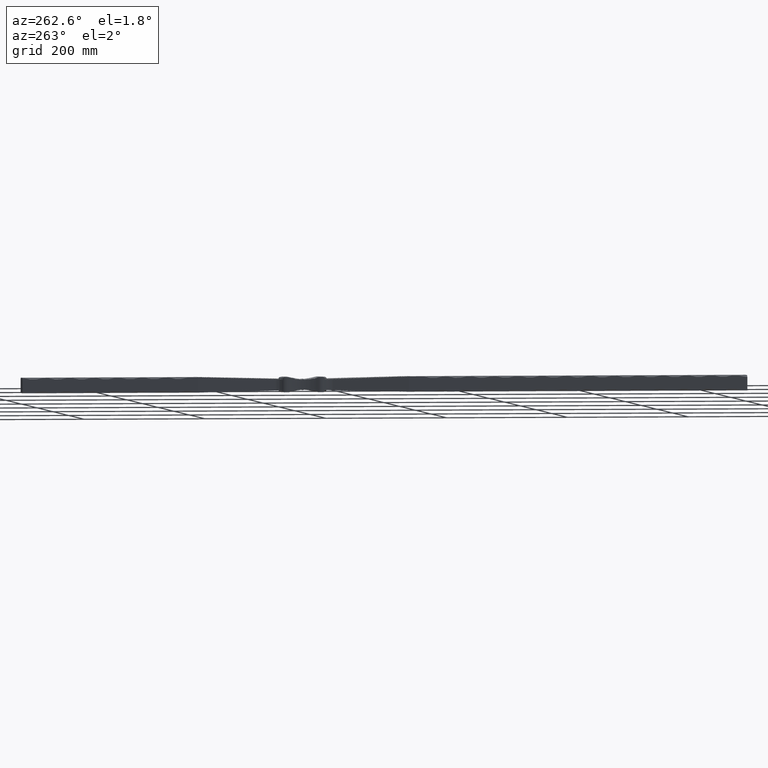
[diagram: clean part render]
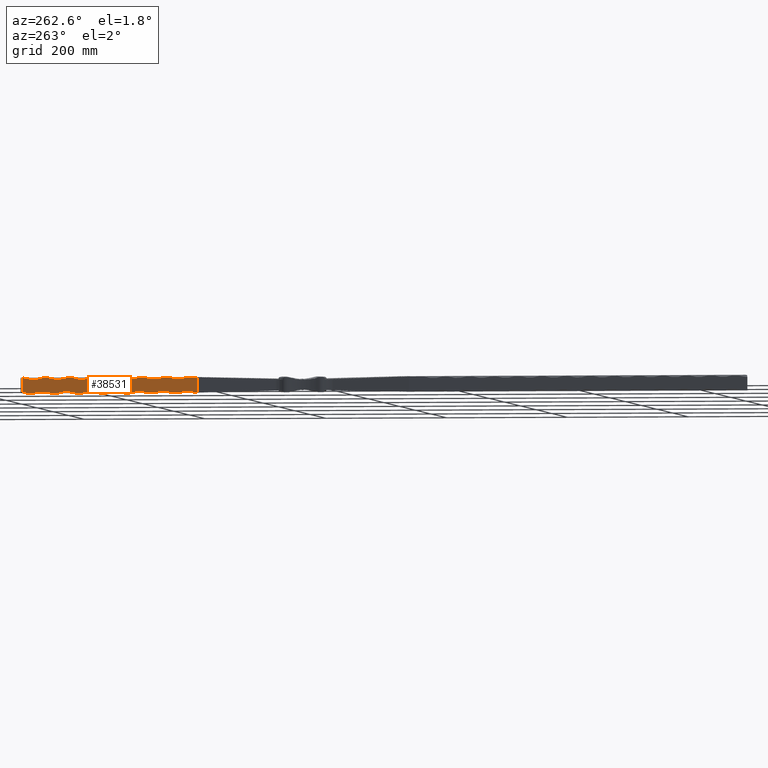
[diagram: same view with one face highlighted and labeled with its STEP entity id]
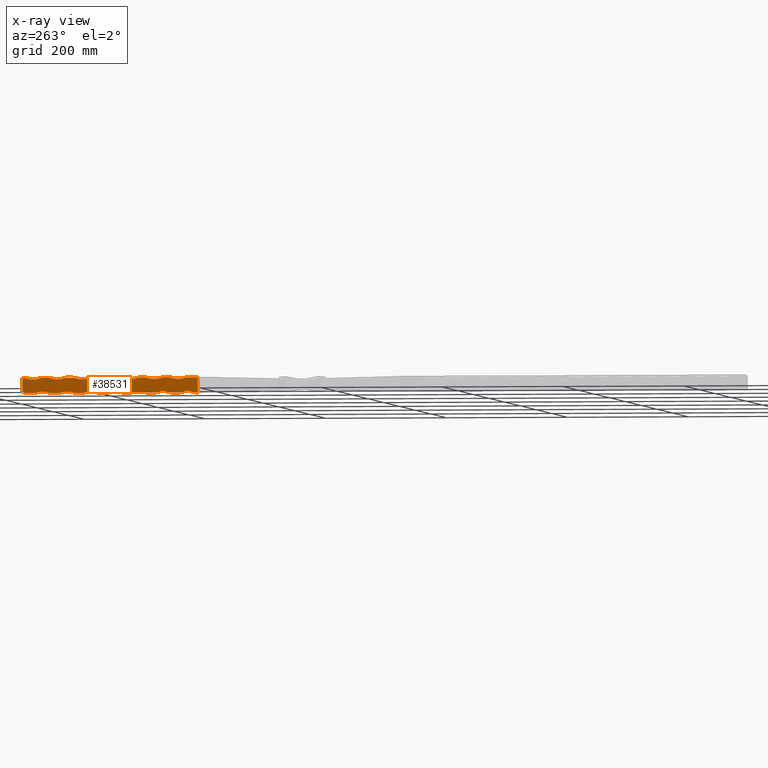
[diagram: x-ray of the same camera — body ghosted, the highlighted face saturated]
A machine part, auxiliary view. The second image highlights one B-rep face of the part: STEP entity #38531.
The next image is the same camera in x-ray: the body ghosted, the highlighted face saturated — about 0% of this face is hidden behind the body in this view.
In plain terms, the highlighted planar face has unit normal (-1, 0, 0).
Its self-contained STEP definition (entity closure, byte-faithful):
#104 = AXIS2_PLACEMENT_3D ( 'NONE', #39880, #43479, #11179 ) ;
#219 = ORIENTED_EDGE ( 'NONE', *, *, #25604, .T. ) ;
#363 = LINE ( 'NONE', #28555, #28546 ) ;
#366 = DIRECTION ( 'NONE',  ( 0.000000000000000000, 1.000000000000000000, 0.000000000000000000 ) ) ;
#463 = EDGE_CURVE ( 'NONE', #7170, #40317, #11768, .T. ) ;
#686 = ORIENTED_EDGE ( 'NONE', *, *, #463, .F. ) ;
#1396 = VECTOR ( 'NONE', #20451, 1000.000000000000000 ) ;
#1565 = AXIS2_PLACEMENT_3D ( 'NONE', #26118, #25955, #44086 ) ;
#2262 = DIRECTION ( 'NONE',  ( 1.500301384628585689E-16, 0.000000000000000000, 1.000000000000000000 ) ) ;
#2331 = CARTESIAN_POINT ( 'NONE',  ( -12.49999999999999289, 909.9999999999998863, -12.49999999999999645 ) ) ;
#2647 = ORIENTED_EDGE ( 'NONE', *, *, #3883, .F. ) ;
#2950 = ORIENTED_EDGE ( 'NONE', *, *, #21893, .F. ) ;
#2969 = CARTESIAN_POINT ( 'NONE',  ( -12.49999999999999112, 909.9999999999998863, 12.49999999999999645 ) ) ;
#3164 = DIRECTION ( 'NONE',  ( 1.000000000000000000, -0.000000000000000000, -1.387778780781445922E-16 ) ) ;
#3343 = LINE ( 'NONE', #17446, #4464 ) ;
#3564 = AXIS2_PLACEMENT_3D ( 'NONE', #13584, #38795, #38652 ) ;
#3655 = DIRECTION ( 'NONE',  ( 1.500301384628585935E-16, 0.000000000000000000, 1.000000000000000000 ) ) ;
#3801 = LINE ( 'NONE', #7329, #31965 ) ;
#3806 = CARTESIAN_POINT ( 'NONE',  ( -12.50000000000000711, 1087.000000000000000, -56.25000000000012079 ) ) ;
#3883 = EDGE_CURVE ( 'NONE', #33367, #5325, #32409, .T. ) ;
#4080 = EDGE_CURVE ( 'NONE', #17441, #12745, #19983, .T. ) ;
#4327 = DIRECTION ( 'NONE',  ( 1.500301384628585935E-16, 0.000000000000000000, 1.000000000000000000 ) ) ;
#4403 = AXIS2_PLACEMENT_3D ( 'NONE', #15299, #18955, #22557 ) ;
#4464 = VECTOR ( 'NONE', #28749, 1000.000000000000000 ) ;
#4567 = CARTESIAN_POINT ( 'NONE',  ( -12.49999999999999289, 909.9999999999998863, -12.49999999999999645 ) ) ;
#4699 = CARTESIAN_POINT ( 'NONE',  ( -12.49999999999998579, 1037.000000000000227, 12.49999999999999645 ) ) ;
#4729 = CARTESIAN_POINT ( 'NONE',  ( -12.49999999999997868, 982.0000000000000000, 56.25000000000012079 ) ) ;
#4994 = FACE_OUTER_BOUND ( 'NONE', #34821, .T. ) ;
#5054 = ORIENTED_EDGE ( 'NONE', *, *, #39967, .F. ) ;
#5091 = ORIENTED_EDGE ( 'NONE', *, *, #26419, .F. ) ;
#5257 = DIRECTION ( 'NONE',  ( 1.500301384628585689E-16, -4.800964430811474204E-15, 1.000000000000000000 ) ) ;
#5325 = VERTEX_POINT ( 'NONE', #20382 ) ;
#5750 = ORIENTED_EDGE ( 'NONE', *, *, #21094, .F. ) ;
#5759 = VERTEX_POINT ( 'NONE', #12149 ) ;
#6375 = DIRECTION ( 'NONE',  ( 1.500301384628585689E-16, 0.000000000000000000, 1.000000000000000000 ) ) ;
#6621 = DIRECTION ( 'NONE',  ( 0.000000000000000000, 1.000000000000000000, 0.000000000000000000 ) ) ;
#6773 = VECTOR ( 'NONE', #29011, 1000.000000000000000 ) ;
#7103 = LINE ( 'NONE', #33618, #31353 ) ;
#7170 = VERTEX_POINT ( 'NONE', #20497 ) ;
#7318 = CARTESIAN_POINT ( 'NONE',  ( -12.49999999999998401, 1166.999999999999773, 12.49999999999999645 ) ) ;
#7329 = CARTESIAN_POINT ( 'NONE',  ( -12.49999999999999112, 909.9999999999998863, 12.49999999999999645 ) ) ;
#8288 = AXIS2_PLACEMENT_3D ( 'NONE', #26509, #33919, #5257 ) ;
#8363 = CARTESIAN_POINT ( 'NONE',  ( -12.49999999999998224, 1087.000000000000000, 12.49999999999999645 ) ) ;
#8771 = CARTESIAN_POINT ( 'NONE',  ( -12.49999999999999645, 1061.999999999999773, -12.50000000000000711 ) ) ;
#8826 = CARTESIAN_POINT ( 'NONE',  ( -12.50000000000000000, 991.9999999999998863, -12.50000000000000711 ) ) ;
#8844 = VERTEX_POINT ( 'NONE', #8363 ) ;
#9068 = CARTESIAN_POINT ( 'NONE',  ( -12.49999999999999112, 1200.000000000000000, 12.49999999999999645 ) ) ;
#10126 = VERTEX_POINT ( 'NONE', #26452 ) ;
#10342 = DIRECTION ( 'NONE',  ( -0.000000000000000000, 0.000000000000000000, -1.000000000000000000 ) ) ;
#10569 = ORIENTED_EDGE ( 'NONE', *, *, #43893, .F. ) ;
#10592 = CARTESIAN_POINT ( 'NONE',  ( -12.50000000000000000, 1111.999999999999773, -12.50000000000000711 ) ) ;
#10659 = CARTESIAN_POINT ( 'NONE',  ( -12.49999999999999112, 909.9999999999998863, 12.50000000000000000 ) ) ;
#10693 = DIRECTION ( 'NONE',  ( -1.000000000000000000, 0.000000000000000000, 1.387778780781445922E-16 ) ) ;
#10733 = CIRCLE ( 'NONE', #8288, 46.25000000000012790 ) ;
#10743 = ORIENTED_EDGE ( 'NONE', *, *, #26625, .F. ) ;
#11009 = VERTEX_POINT ( 'NONE', #16446 ) ;
#11179 = DIRECTION ( 'NONE',  ( 1.500301384628585689E-16, 0.000000000000000000, 1.000000000000000000 ) ) ;
#11650 = DIRECTION ( 'NONE',  ( 0.000000000000000000, 1.000000000000000000, 0.000000000000000000 ) ) ;
#11718 = DIRECTION ( 'NONE',  ( 0.000000000000000000, 1.000000000000000000, 0.000000000000000000 ) ) ;
#11768 = CIRCLE ( 'NONE', #3564, 46.25000000000012079 ) ;
#11821 = EDGE_CURVE ( 'NONE', #22824, #12464, #28022, .T. ) ;
#11922 = VECTOR ( 'NONE', #32395, 1000.000000000000000 ) ;
#12149 = CARTESIAN_POINT ( 'NONE',  ( -12.49999999999997868, 967.0000000000000000, 12.49999999999999645 ) ) ;
#12388 = EDGE_CURVE ( 'NONE', #5325, #42114, #37107, .T. ) ;
#12464 = VERTEX_POINT ( 'NONE', #24770 ) ;
#12745 = VERTEX_POINT ( 'NONE', #16399 ) ;
#13119 = PLANE ( 'NONE',  #21040 ) ;
#13584 = CARTESIAN_POINT ( 'NONE',  ( -12.50000000000000711, 926.9999999999998863, -56.25000000000012079 ) ) ;
#13617 = EDGE_CURVE ( 'NONE', #43715, #19448, #7103, .T. ) ;
#13800 = VECTOR ( 'NONE', #24222, 1000.000000000000000 ) ;
#13811 = ORIENTED_EDGE ( 'NONE', *, *, #42289, .T. ) ;
#13819 = EDGE_CURVE ( 'NONE', #26914, #8844, #33622, .T. ) ;
#13880 = VECTOR ( 'NONE', #10342, 1000.000000000000000 ) ;
#13898 = CARTESIAN_POINT ( 'NONE',  ( -12.49999999999999112, 909.9999999999998863, 12.49999999999999645 ) ) ;
#14117 = VERTEX_POINT ( 'NONE', #22828 ) ;
#14121 = VERTEX_POINT ( 'NONE', #8771 ) ;
#14242 = CARTESIAN_POINT ( 'NONE',  ( -12.49999999999999645, 1101.999999999999773, -12.50000000000000711 ) ) ;
#14382 = CIRCLE ( 'NONE', #14807, 46.25000000000012790 ) ;
#14602 = DIRECTION ( 'NONE',  ( 0.000000000000000000, 1.000000000000000000, 0.000000000000000000 ) ) ;
#14659 = DIRECTION ( 'NONE',  ( 0.000000000000000000, 1.000000000000000000, 0.000000000000000000 ) ) ;
#14704 = CIRCLE ( 'NONE', #35088, 46.25000000000012079 ) ;
#14807 = AXIS2_PLACEMENT_3D ( 'NONE', #21130, #3164, #39225 ) ;
#14843 = EDGE_CURVE ( 'NONE', #5759, #10126, #28448, .T. ) ;
#14932 = CIRCLE ( 'NONE', #27475, 46.25000000000012790 ) ;
#15299 = CARTESIAN_POINT ( 'NONE',  ( -12.49999999999997868, 1022.000000000000000, 56.25000000000012079 ) ) ;
#15486 = ORIENTED_EDGE ( 'NONE', *, *, #16844, .T. ) ;
#15493 = CARTESIAN_POINT ( 'NONE',  ( -12.49999999999999112, 909.9999999999998863, 12.49999999999999645 ) ) ;
#15626 = AXIS2_PLACEMENT_3D ( 'NONE', #36614, #25885, #4327 ) ;
#16151 = DIRECTION ( 'NONE',  ( 1.500301384628585935E-16, 0.000000000000000000, 1.000000000000000000 ) ) ;
#16257 = VERTEX_POINT ( 'NONE', #27614 ) ;
#16399 = CARTESIAN_POINT ( 'NONE',  ( -12.49999999999998046, 1047.000000000000000, 12.49999999999999645 ) ) ;
#16410 = LINE ( 'NONE', #43377, #6773 ) ;
#16446 = CARTESIAN_POINT ( 'NONE',  ( -12.49999999999999645, 1181.999999999999773, -12.50000000000000711 ) ) ;
#16574 = CARTESIAN_POINT ( 'NONE',  ( -12.50000000000000000, 1200.000000000000000, -10.53279864208657379 ) ) ;
#16621 = DIRECTION ( 'NONE',  ( -1.000000000000000000, 0.000000000000000000, 1.387778780781445922E-16 ) ) ;
#16844 = EDGE_CURVE ( 'NONE', #16257, #17441, #36797, .T. ) ;
#16887 = VERTEX_POINT ( 'NONE', #30252 ) ;
#17299 = LINE ( 'NONE', #18614, #20697 ) ;
#17441 = VERTEX_POINT ( 'NONE', #4699 ) ;
#17446 = CARTESIAN_POINT ( 'NONE',  ( -12.49999999999999112, 909.9999999999998863, 12.49999999999999645 ) ) ;
#17497 = DIRECTION ( 'NONE',  ( -1.000000000000000000, 0.000000000000000000, 1.387778780781445922E-16 ) ) ;
#17503 = ORIENTED_EDGE ( 'NONE', *, *, #35149, .F. ) ;
#17550 = VECTOR ( 'NONE', #11650, 1000.000000000000000 ) ;
#17735 = EDGE_CURVE ( 'NONE', #43635, #21465, #39550, .T. ) ;
#17796 = DIRECTION ( 'NONE',  ( 1.500301384628585935E-16, 0.000000000000000000, 1.000000000000000000 ) ) ;
#18079 = EDGE_CURVE ( 'NONE', #30524, #19448, #24892, .T. ) ;
#18162 = EDGE_CURVE ( 'NONE', #19179, #29967, #16410, .T. ) ;
#18509 = EDGE_CURVE ( 'NONE', #21465, #30524, #10733, .T. ) ;
#18534 = CARTESIAN_POINT ( 'NONE',  ( -12.50000000000000000, 952.0000000000000000, -12.50000000000000711 ) ) ;
#18614 = CARTESIAN_POINT ( 'NONE',  ( -12.49999999999999289, 909.9999999999998863, -12.49999999999999645 ) ) ;
#18955 = DIRECTION ( 'NONE',  ( 1.000000000000000000, -0.000000000000000000, -1.387778780781445922E-16 ) ) ;
#19179 = VERTEX_POINT ( 'NONE', #43468 ) ;
#19327 = VERTEX_POINT ( 'NONE', #33081 ) ;
#19448 = VERTEX_POINT ( 'NONE', #9068 ) ;
#19482 = CIRCLE ( 'NONE', #40297, 46.25000000000012790 ) ;
#19769 = CARTESIAN_POINT ( 'NONE',  ( -12.50000000000000711, 1127.000000000000000, -56.25000000000012079 ) ) ;
#19840 = ORIENTED_EDGE ( 'NONE', *, *, #27028, .T. ) ;
#19964 = VECTOR ( 'NONE', #44077, 1000.000000000000000 ) ;
#19983 = LINE ( 'NONE', #42026, #1396 ) ;
#20018 = EDGE_CURVE ( 'NONE', #28357, #22824, #41691, .T. ) ;
#20141 = DIRECTION ( 'NONE',  ( 0.000000000000000000, 1.000000000000000000, 0.000000000000000000 ) ) ;
#20202 = CARTESIAN_POINT ( 'NONE',  ( -12.49999999999999645, 942.0000000000000000, -12.50000000000000711 ) ) ;
#20382 = CARTESIAN_POINT ( 'NONE',  ( -12.49999999999999645, 982.0000000000000000, -12.50000000000000711 ) ) ;
#20451 = DIRECTION ( 'NONE',  ( 0.000000000000000000, 1.000000000000000000, 0.000000000000000000 ) ) ;
#20481 = ORIENTED_EDGE ( 'NONE', *, *, #24217, .T. ) ;
#20497 = CARTESIAN_POINT ( 'NONE',  ( -12.50000000000000000, 911.9999999999998863, -12.50000000000000711 ) ) ;
#20697 = VECTOR ( 'NONE', #14659, 1000.000000000000000 ) ;
#20871 = ORIENTED_EDGE ( 'NONE', *, *, #11821, .F. ) ;
#20897 = DIRECTION ( 'NONE',  ( -1.000000000000000000, 0.000000000000000000, 1.387778780781445922E-16 ) ) ;
#21040 = AXIS2_PLACEMENT_3D ( 'NONE', #27433, #24146, #31067 ) ;
#21094 = EDGE_CURVE ( 'NONE', #40317, #33367, #23207, .T. ) ;
#21130 = CARTESIAN_POINT ( 'NONE',  ( -12.49999999999998224, 1101.999999999999773, 56.25000000000012079 ) ) ;
#21465 = VERTEX_POINT ( 'NONE', #7318 ) ;
#21893 = EDGE_CURVE ( 'NONE', #42114, #19179, #41156, .T. ) ;
#22070 = ORIENTED_EDGE ( 'NONE', *, *, #20018, .F. ) ;
#22079 = LINE ( 'NONE', #41323, #35039 ) ;
#22197 = ORIENTED_EDGE ( 'NONE', *, *, #14843, .T. ) ;
#22557 = DIRECTION ( 'NONE',  ( 1.500301384628585689E-16, -4.800964430811474204E-15, 1.000000000000000000 ) ) ;
#22824 = VERTEX_POINT ( 'NONE', #25177 ) ;
#22828 = CARTESIAN_POINT ( 'NONE',  ( -12.50000000000000000, 1192.000000000000000, -12.50000000000000711 ) ) ;
#23207 = LINE ( 'NONE', #4567, #17550 ) ;
#23522 = CARTESIAN_POINT ( 'NONE',  ( -12.50000000000000000, 1032.000000000000000, -12.50000000000000711 ) ) ;
#23603 = CARTESIAN_POINT ( 'NONE',  ( -12.49999999999999289, 909.9999999999998863, -12.49999999999999645 ) ) ;
#23644 = AXIS2_PLACEMENT_3D ( 'NONE', #45779, #20897, #45945 ) ;
#24146 = DIRECTION ( 'NONE',  ( -1.000000000000000000, 0.000000000000000000, 1.387778780781445922E-16 ) ) ;
#24217 = EDGE_CURVE ( 'NONE', #46447, #16887, #3343, .T. ) ;
#24222 = DIRECTION ( 'NONE',  ( 0.000000000000000000, 1.000000000000000000, 0.000000000000000000 ) ) ;
#24284 = ORIENTED_EDGE ( 'NONE', *, *, #17735, .T. ) ;
#24770 = CARTESIAN_POINT ( 'NONE',  ( -12.50000000000000000, 1152.000000000000000, -12.50000000000000711 ) ) ;
#24868 = CIRCLE ( 'NONE', #104, 46.25000000000012790 ) ;
#24892 = LINE ( 'NONE', #36455, #38420 ) ;
#25177 = CARTESIAN_POINT ( 'NONE',  ( -12.49999999999999645, 1142.000000000000000, -12.50000000000000711 ) ) ;
#25201 = CARTESIAN_POINT ( 'NONE',  ( -12.50000000000000711, 1206.999999999999773, -56.25000000000012079 ) ) ;
#25205 = ORIENTED_EDGE ( 'NONE', *, *, #25982, .F. ) ;
#25223 = VERTEX_POINT ( 'NONE', #28170 ) ;
#25577 = CARTESIAN_POINT ( 'NONE',  ( -12.49999999999998934, 1157.000000000000000, 12.49999999999999645 ) ) ;
#25604 = EDGE_CURVE ( 'NONE', #25223, #5759, #31972, .T. ) ;
#25885 = DIRECTION ( 'NONE',  ( -1.000000000000000000, 0.000000000000000000, 1.387778780781445922E-16 ) ) ;
#25955 = DIRECTION ( 'NONE',  ( -1.000000000000000000, 0.000000000000000000, 1.387778780781445922E-16 ) ) ;
#25982 = EDGE_CURVE ( 'NONE', #36679, #28357, #17299, .T. ) ;
#26118 = CARTESIAN_POINT ( 'NONE',  ( -12.50000000000000711, 967.0000000000000000, -56.25000000000012079 ) ) ;
#26419 = EDGE_CURVE ( 'NONE', #46447, #39364, #33085, .T. ) ;
#26452 = CARTESIAN_POINT ( 'NONE',  ( -12.49999999999998579, 997.0000000000000000, 12.49999999999999645 ) ) ;
#26509 = CARTESIAN_POINT ( 'NONE',  ( -12.49999999999998401, 1182.000000000000000, 56.25000000000012079 ) ) ;
#26625 = EDGE_CURVE ( 'NONE', #12464, #11009, #40364, .T. ) ;
#26914 = VERTEX_POINT ( 'NONE', #37559 ) ;
#27028 = EDGE_CURVE ( 'NONE', #16887, #25223, #19482, .T. ) ;
#27425 = ORIENTED_EDGE ( 'NONE', *, *, #18162, .F. ) ;
#27433 = CARTESIAN_POINT ( 'NONE',  ( -12.49999999999999289, 909.9999999999998863, -12.49999999999999645 ) ) ;
#27475 = AXIS2_PLACEMENT_3D ( 'NONE', #31446, #31594, #6375 ) ;
#27614 = CARTESIAN_POINT ( 'NONE',  ( -12.49999999999997868, 1006.999999999999886, 12.49999999999999645 ) ) ;
#27765 = EDGE_CURVE ( 'NONE', #10126, #16257, #28431, .T. ) ;
#28022 = LINE ( 'NONE', #2331, #41042 ) ;
#28079 = CARTESIAN_POINT ( 'NONE',  ( -12.49999999999999112, 909.9999999999998863, 12.49999999999999645 ) ) ;
#28170 = CARTESIAN_POINT ( 'NONE',  ( -12.49999999999998401, 957.0000000000000000, 12.49999999999999645 ) ) ;
#28357 = VERTEX_POINT ( 'NONE', #10592 ) ;
#28399 = DIRECTION ( 'NONE',  ( 0.000000000000000000, 1.000000000000000000, 0.000000000000000000 ) ) ;
#28431 = LINE ( 'NONE', #2969, #13800 ) ;
#28448 = CIRCLE ( 'NONE', #35981, 46.25000000000012790 ) ;
#28546 = VECTOR ( 'NONE', #28399, 1000.000000000000000 ) ;
#28555 = CARTESIAN_POINT ( 'NONE',  ( -12.49999999999999289, 909.9999999999998863, -12.49999999999999645 ) ) ;
#28749 = DIRECTION ( 'NONE',  ( 0.000000000000000000, 1.000000000000000000, 0.000000000000000000 ) ) ;
#29011 = DIRECTION ( 'NONE',  ( 0.000000000000000000, 1.000000000000000000, 0.000000000000000000 ) ) ;
#29605 = DIRECTION ( 'NONE',  ( 1.500301384628585689E-16, 0.000000000000000000, 1.000000000000000000 ) ) ;
#29967 = VERTEX_POINT ( 'NONE', #23522 ) ;
#30048 = CIRCLE ( 'NONE', #30172, 46.25000000000012079 ) ;
#30172 = AXIS2_PLACEMENT_3D ( 'NONE', #25201, #46483, #17796 ) ;
#30252 = CARTESIAN_POINT ( 'NONE',  ( -12.49999999999997691, 926.9999999999998863, 12.49999999999999645 ) ) ;
#30340 = CARTESIAN_POINT ( 'NONE',  ( -12.49999999999999289, 909.9999999999998863, -12.49999999999999645 ) ) ;
#30524 = VERTEX_POINT ( 'NONE', #33858 ) ;
#30555 = CARTESIAN_POINT ( 'NONE',  ( -12.49999999999998934, 1117.000000000000000, 12.49999999999999645 ) ) ;
#30587 = ORIENTED_EDGE ( 'NONE', *, *, #45398, .T. ) ;
#31067 = DIRECTION ( 'NONE',  ( 1.387778780781445922E-16, 0.000000000000000000, 1.000000000000000000 ) ) ;
#31353 = VECTOR ( 'NONE', #33025, 1000.000000000000000 ) ;
#31446 = CARTESIAN_POINT ( 'NONE',  ( -12.49999999999998224, 1142.000000000000000, 56.25000000000012079 ) ) ;
#31462 = ORIENTED_EDGE ( 'NONE', *, *, #32715, .F. ) ;
#31594 = DIRECTION ( 'NONE',  ( 1.000000000000000000, -0.000000000000000000, -1.387778780781445922E-16 ) ) ;
#31965 = VECTOR ( 'NONE', #14602, 1000.000000000000000 ) ;
#31972 = LINE ( 'NONE', #15493, #38181 ) ;
#32365 = ORIENTED_EDGE ( 'NONE', *, *, #27765, .T. ) ;
#32395 = DIRECTION ( 'NONE',  ( 0.000000000000000000, 1.000000000000000000, 0.000000000000000000 ) ) ;
#32409 = CIRCLE ( 'NONE', #1565, 46.25000000000012079 ) ;
#32715 = EDGE_CURVE ( 'NONE', #14117, #43715, #30048, .T. ) ;
#32940 = EDGE_CURVE ( 'NONE', #11009, #14117, #34586, .T. ) ;
#33025 = DIRECTION ( 'NONE',  ( 1.387778780781445922E-16, 0.000000000000000000, 1.000000000000000000 ) ) ;
#33081 = CARTESIAN_POINT ( 'NONE',  ( -12.49999999999998224, 1127.000000000000000, 12.49999999999999645 ) ) ;
#33085 = LINE ( 'NONE', #10659, #13880 ) ;
#33367 = VERTEX_POINT ( 'NONE', #18534 ) ;
#33618 = CARTESIAN_POINT ( 'NONE',  ( -12.49999999999999289, 1200.000000000000000, -12.49999999999999645 ) ) ;
#33622 = LINE ( 'NONE', #28079, #38150 ) ;
#33858 = CARTESIAN_POINT ( 'NONE',  ( -12.49999999999999112, 1197.000000000000000, 12.49999999999999645 ) ) ;
#33919 = DIRECTION ( 'NONE',  ( 1.000000000000000000, -0.000000000000000000, -1.387778780781445922E-16 ) ) ;
#33984 = ORIENTED_EDGE ( 'NONE', *, *, #39535, .T. ) ;
#34060 = DIRECTION ( 'NONE',  ( 0.000000000000000000, 1.000000000000000000, 0.000000000000000000 ) ) ;
#34586 = LINE ( 'NONE', #30340, #19964 ) ;
#34702 = CARTESIAN_POINT ( 'NONE',  ( -12.49999999999997691, 942.0000000000000000, 56.25000000000012079 ) ) ;
#34821 = EDGE_LOOP ( 'NONE', ( #24284, #45772, #36198, #35163, #31462, #44461, #10743, #20871, #22070, #25205, #10569, #5054, #39694, #27425, #2950, #42334, #2647, #5750, #686, #17503, #5091, #20481, #19840, #219, #22197, #32365, #15486, #41801, #30587, #46436, #13811, #33984, #39466 ) ) ;
#35039 = VECTOR ( 'NONE', #34060, 1000.000000000000000 ) ;
#35088 = AXIS2_PLACEMENT_3D ( 'NONE', #42696, #17497, #46170 ) ;
#35149 = EDGE_CURVE ( 'NONE', #39364, #7170, #22079, .T. ) ;
#35163 = ORIENTED_EDGE ( 'NONE', *, *, #13617, .F. ) ;
#35981 = AXIS2_PLACEMENT_3D ( 'NONE', #4729, #40507, #29605 ) ;
#36198 = ORIENTED_EDGE ( 'NONE', *, *, #18079, .T. ) ;
#36455 = CARTESIAN_POINT ( 'NONE',  ( -12.49999999999999112, 909.9999999999998863, 12.49999999999999645 ) ) ;
#36614 = CARTESIAN_POINT ( 'NONE',  ( -12.50000000000000711, 1006.999999999999886, -56.25000000000012079 ) ) ;
#36679 = VERTEX_POINT ( 'NONE', #14242 ) ;
#36760 = VERTEX_POINT ( 'NONE', #46409 ) ;
#36797 = CIRCLE ( 'NONE', #4403, 46.25000000000012790 ) ;
#37107 = LINE ( 'NONE', #46369, #45505 ) ;
#37375 = VERTEX_POINT ( 'NONE', #30555 ) ;
#37559 = CARTESIAN_POINT ( 'NONE',  ( -12.49999999999998757, 1077.000000000000000, 12.49999999999999645 ) ) ;
#38150 = VECTOR ( 'NONE', #42281, 1000.000000000000000 ) ;
#38181 = VECTOR ( 'NONE', #11718, 1000.000000000000000 ) ;
#38420 = VECTOR ( 'NONE', #366, 1000.000000000000000 ) ;
#38531 = ADVANCED_FACE ( 'NONE', ( #4994 ), #13119, .T. ) ;
#38652 = DIRECTION ( 'NONE',  ( 1.500301384628585935E-16, 0.000000000000000000, 1.000000000000000000 ) ) ;
#38795 = DIRECTION ( 'NONE',  ( -1.000000000000000000, 0.000000000000000000, 1.387778780781445922E-16 ) ) ;
#39170 = CARTESIAN_POINT ( 'NONE',  ( -12.49999999999999112, 909.9999999999998863, 12.49999999999999645 ) ) ;
#39225 = DIRECTION ( 'NONE',  ( 1.500301384628585689E-16, 0.000000000000000000, 1.000000000000000000 ) ) ;
#39364 = VERTEX_POINT ( 'NONE', #23603 ) ;
#39466 = ORIENTED_EDGE ( 'NONE', *, *, #42729, .T. ) ;
#39535 = EDGE_CURVE ( 'NONE', #37375, #19327, #3801, .T. ) ;
#39550 = LINE ( 'NONE', #39170, #11922 ) ;
#39694 = ORIENTED_EDGE ( 'NONE', *, *, #45329, .F. ) ;
#39880 = CARTESIAN_POINT ( 'NONE',  ( -12.49999999999998046, 1061.999999999999773, 56.25000000000012079 ) ) ;
#39967 = EDGE_CURVE ( 'NONE', #14121, #36760, #363, .T. ) ;
#40297 = AXIS2_PLACEMENT_3D ( 'NONE', #34702, #45423, #2262 ) ;
#40317 = VERTEX_POINT ( 'NONE', #20202 ) ;
#40364 = CIRCLE ( 'NONE', #23644, 46.25000000000012079 ) ;
#40507 = DIRECTION ( 'NONE',  ( 1.000000000000000000, -0.000000000000000000, -1.387778780781445922E-16 ) ) ;
#40841 = AXIS2_PLACEMENT_3D ( 'NONE', #3806, #10693, #3655 ) ;
#41042 = VECTOR ( 'NONE', #20141, 1000.000000000000000 ) ;
#41156 = CIRCLE ( 'NONE', #15626, 46.25000000000012079 ) ;
#41323 = CARTESIAN_POINT ( 'NONE',  ( -12.49999999999999289, 909.9999999999998863, -12.49999999999999645 ) ) ;
#41691 = CIRCLE ( 'NONE', #44537, 46.25000000000012079 ) ;
#41801 = ORIENTED_EDGE ( 'NONE', *, *, #4080, .T. ) ;
#42026 = CARTESIAN_POINT ( 'NONE',  ( -12.49999999999999112, 909.9999999999998863, 12.49999999999999645 ) ) ;
#42114 = VERTEX_POINT ( 'NONE', #8826 ) ;
#42281 = DIRECTION ( 'NONE',  ( 0.000000000000000000, 1.000000000000000000, 0.000000000000000000 ) ) ;
#42289 = EDGE_CURVE ( 'NONE', #8844, #37375, #14382, .T. ) ;
#42334 = ORIENTED_EDGE ( 'NONE', *, *, #12388, .F. ) ;
#42696 = CARTESIAN_POINT ( 'NONE',  ( -12.50000000000000711, 1047.000000000000000, -56.25000000000012079 ) ) ;
#42729 = EDGE_CURVE ( 'NONE', #19327, #43635, #14932, .T. ) ;
#43377 = CARTESIAN_POINT ( 'NONE',  ( -12.49999999999999289, 909.9999999999998863, -12.49999999999999645 ) ) ;
#43468 = CARTESIAN_POINT ( 'NONE',  ( -12.49999999999999645, 1021.999999999999773, -12.50000000000000711 ) ) ;
#43479 = DIRECTION ( 'NONE',  ( 1.000000000000000000, -0.000000000000000000, -1.387778780781445922E-16 ) ) ;
#43635 = VERTEX_POINT ( 'NONE', #25577 ) ;
#43715 = VERTEX_POINT ( 'NONE', #16574 ) ;
#43893 = EDGE_CURVE ( 'NONE', #36760, #36679, #45850, .T. ) ;
#44077 = DIRECTION ( 'NONE',  ( 0.000000000000000000, 1.000000000000000000, 0.000000000000000000 ) ) ;
#44086 = DIRECTION ( 'NONE',  ( 1.500301384628585935E-16, 0.000000000000000000, 1.000000000000000000 ) ) ;
#44461 = ORIENTED_EDGE ( 'NONE', *, *, #32940, .F. ) ;
#44537 = AXIS2_PLACEMENT_3D ( 'NONE', #19769, #16621, #16151 ) ;
#45329 = EDGE_CURVE ( 'NONE', #29967, #14121, #14704, .T. ) ;
#45398 = EDGE_CURVE ( 'NONE', #12745, #26914, #24868, .T. ) ;
#45423 = DIRECTION ( 'NONE',  ( 1.000000000000000000, -0.000000000000000000, -1.387778780781445922E-16 ) ) ;
#45505 = VECTOR ( 'NONE', #6621, 1000.000000000000000 ) ;
#45772 = ORIENTED_EDGE ( 'NONE', *, *, #18509, .T. ) ;
#45779 = CARTESIAN_POINT ( 'NONE',  ( -12.50000000000000711, 1166.999999999999773, -56.25000000000012079 ) ) ;
#45850 = CIRCLE ( 'NONE', #40841, 46.25000000000012079 ) ;
#45945 = DIRECTION ( 'NONE',  ( 1.500301384628585935E-16, 0.000000000000000000, 1.000000000000000000 ) ) ;
#46170 = DIRECTION ( 'NONE',  ( 1.500301384628585935E-16, 0.000000000000000000, 1.000000000000000000 ) ) ;
#46369 = CARTESIAN_POINT ( 'NONE',  ( -12.49999999999999289, 909.9999999999998863, -12.49999999999999645 ) ) ;
#46409 = CARTESIAN_POINT ( 'NONE',  ( -12.50000000000000000, 1071.999999999999773, -12.50000000000000711 ) ) ;
#46436 = ORIENTED_EDGE ( 'NONE', *, *, #13819, .T. ) ;
#46447 = VERTEX_POINT ( 'NONE', #13898 ) ;
#46483 = DIRECTION ( 'NONE',  ( -1.000000000000000000, 0.000000000000000000, 1.387778780781445922E-16 ) ) ;